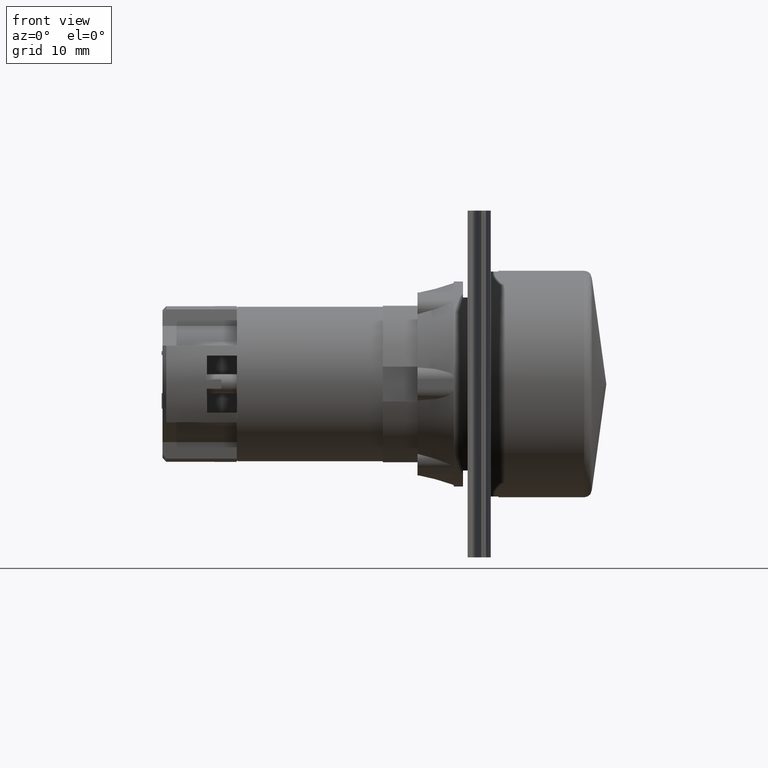
[diagram: clean part render]
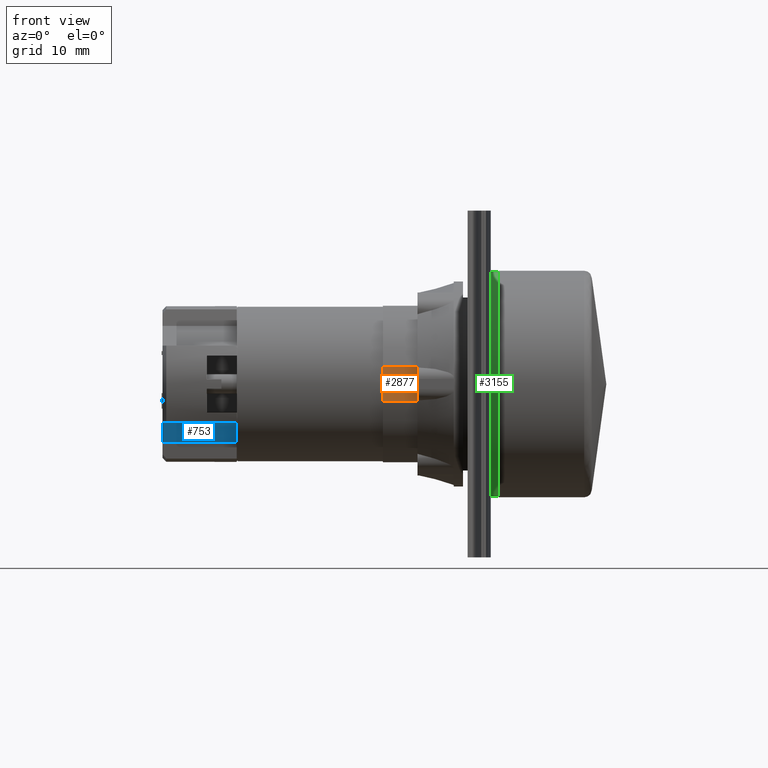
[diagram: same view with three faces highlighted in distinct colors, each labeled with its STEP entity id]
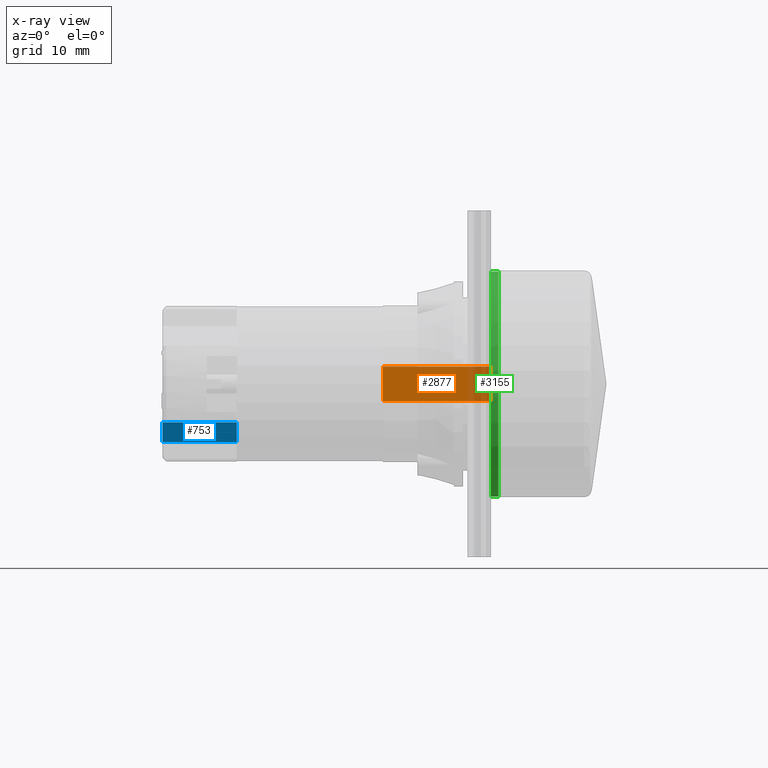
[diagram: x-ray of the same camera — body ghosted, the three highlighted faces saturated]
A machine part, front view with three faces highlighted in distinct colors.
The next image is the same camera in x-ray (body ghosted, the three faces saturated) — at least one of them is partly hidden behind the body in this view.
Their STEP definitions:

[orange] entity #2877 — the highlighted planar face has unit normal (0, 1, 0).
#2721=CARTESIAN_POINT('',(-0.522597079042573,-9.725286447873549,2.250000000000003));
#2722=VERTEX_POINT('',#2721);
#2729=CARTESIAN_POINT('',(-0.522597079042573,-9.725286447873549,-2.249999999999997));
#2730=VERTEX_POINT('',#2729);
#2731=CARTESIAN_POINT('',(-0.522597079042573,-9.725286447873549,2.250000000000003));
#2732=DIRECTION('',(0.0,0.0,-1.0));
#2733=VECTOR('',#2732,4.500000000000000);
#2734=LINE('',#2731,#2733);
#2735=EDGE_CURVE('',#2722,#2730,#2734,.T.);
#2829=CARTESIAN_POINT('',(-14.522597079042569,-9.725286447873549,2.250000000000003));
#2830=VERTEX_POINT('',#2829);
#2837=CARTESIAN_POINT('',(-14.522597079042569,-9.725286447873549,2.250000000000003));
#2838=DIRECTION('',(1.0,0.0,0.0));
#2839=VECTOR('',#2838,13.999999999999996);
#2840=LINE('',#2837,#2839);
#2841=EDGE_CURVE('',#2830,#2722,#2840,.T.);
#2846=CARTESIAN_POINT('',(-14.522597079042569,-9.725286447873549,2.250000000000003));
#2847=DIRECTION('',(0.0,1.0,0.0));
#2848=DIRECTION('',(0.0,0.0,1.0));
#2849=AXIS2_PLACEMENT_3D('',#2846,#2847,#2848);
#2850=PLANE('',#2849);
#2851=ORIENTED_EDGE('',*,*,#2735,.F.);
#2852=ORIENTED_EDGE('',*,*,#2841,.F.);
#2853=CARTESIAN_POINT('',(-14.522597079042569,-9.725286447873549,0.0));
#2854=VERTEX_POINT('',#2853);
#2855=CARTESIAN_POINT('',(-14.522597079042569,-9.725286447873549,0.0));
#2856=DIRECTION('',(0.0,0.0,1.0));
#2857=VECTOR('',#2856,2.250000000000003);
#2858=LINE('',#2855,#2857);
#2859=EDGE_CURVE('',#2854,#2830,#2858,.T.);
#2860=ORIENTED_EDGE('',*,*,#2859,.F.);
#2861=CARTESIAN_POINT('',(-14.522597079042569,-9.725286447873549,-2.249999999999997));
#2862=VERTEX_POINT('',#2861);
#2863=CARTESIAN_POINT('',(-14.522597079042569,-9.725286447873549,-2.249999999999997));
#2864=DIRECTION('',(0.0,0.0,1.0));
#2865=VECTOR('',#2864,2.249999999999997);
#2866=LINE('',#2863,#2865);
#2867=EDGE_CURVE('',#2862,#2854,#2866,.T.);
#2868=ORIENTED_EDGE('',*,*,#2867,.F.);
#2869=CARTESIAN_POINT('',(-14.522597079042569,-9.725286447873549,-2.249999999999997));
#2870=DIRECTION('',(1.0,0.0,0.0));
#2871=VECTOR('',#2870,13.999999999999996);
#2872=LINE('',#2869,#2871);
#2873=EDGE_CURVE('',#2862,#2730,#2872,.T.);
#2874=ORIENTED_EDGE('',*,*,#2873,.T.);
#2875=EDGE_LOOP('',(#2851,#2852,#2860,#2868,#2874));
#2876=FACE_OUTER_BOUND('',#2875,.T.);
#2877=ADVANCED_FACE('',(#2876),#2850,.F.);

[blue] entity #753 — the highlighted planar face has unit normal (0, 0.6046, 0.7965).
#657=CARTESIAN_POINT('',(-43.122597079042571,-6.240128254737982,-4.980386830936121));
#658=VERTEX_POINT('',#657);
#665=CARTESIAN_POINT('',(-33.472597079042586,-6.240128254737982,-4.980386830936121));
#666=VERTEX_POINT('',#665);
#667=CARTESIAN_POINT('',(-43.122597079042571,-6.240128254737982,-4.980386830936121));
#668=DIRECTION('',(1.0,0.0,0.0));
#669=VECTOR('',#668,9.649999999999984);
#670=LINE('',#667,#669);
#671=EDGE_CURVE('',#658,#666,#670,.T.);
#713=CARTESIAN_POINT('',(-33.472597079042586,-2.872708961017791,-7.536476785324715));
#714=VERTEX_POINT('',#713);
#715=CARTESIAN_POINT('',(-33.472597079042586,-6.240128254737982,-4.980386830936121));
#716=DIRECTION('',(0.0,0.796520851439320,-0.604611059460857));
#717=VECTOR('',#716,4.227659938387344);
#718=LINE('',#715,#717);
#719=EDGE_CURVE('',#666,#714,#718,.T.);
#730=CARTESIAN_POINT('',(-43.122597079042571,-6.240128254737982,-4.980386830936121));
#731=DIRECTION('',(0.0,0.604611059460857,0.796520851439320));
#732=DIRECTION('',(1.0,0.0,0.0));
#733=AXIS2_PLACEMENT_3D('',#730,#731,#732);
#734=PLANE('',#733);
#735=ORIENTED_EDGE('',*,*,#719,.F.);
#736=ORIENTED_EDGE('',*,*,#671,.F.);
#737=CARTESIAN_POINT('',(-43.122597079042571,-2.872708961017791,-7.536476785324715));
#738=VERTEX_POINT('',#737);
#739=CARTESIAN_POINT('',(-43.122597079042571,-2.872708961017791,-7.536476785324715));
#740=DIRECTION('',(0.0,-0.796520851439320,0.604611059460857));
#741=VECTOR('',#740,4.227659938387344);
#742=LINE('',#739,#741);
#743=EDGE_CURVE('',#738,#658,#742,.T.);
#744=ORIENTED_EDGE('',*,*,#743,.F.);
#745=CARTESIAN_POINT('',(-43.122597079042571,-2.872708961017791,-7.536476785324715));
#746=DIRECTION('',(1.0,0.0,0.0));
#747=VECTOR('',#746,9.649999999999984);
#748=LINE('',#745,#747);
#749=EDGE_CURVE('',#738,#714,#748,.T.);
#750=ORIENTED_EDGE('',*,*,#749,.T.);
#751=EDGE_LOOP('',(#735,#736,#744,#750));
#752=FACE_OUTER_BOUND('',#751,.T.);
#753=ADVANCED_FACE('',(#752),#734,.F.);

[green] entity #3155 — the highlighted cylindrical surface (bore or boss wall) has radius 14.625 mm, axis along (1, 0, 0).
#2709=CARTESIAN_POINT('',(-0.522597079042570,8.842036944435796,11.924556996804954));
#2710=VERTEX_POINT('',#2709);
#2711=CARTESIAN_POINT('',(-0.522597079042570,0.374713552126451,0.0));
#2712=DIRECTION('',(1.0,-1.302521E-013,0.0));
#2713=DIRECTION('',(1.302521E-013,1.0,0.0));
#2714=AXIS2_PLACEMENT_3D('',#2711,#2712,#2713);
#2715=CIRCLE('',#2714,14.624999999999966);
#2716=EDGE_CURVE('',#2710,#2710,#2715,.T.);
#3136=CARTESIAN_POINT('',(-0.022597079042570,0.374713552126451,0.0));
#3137=DIRECTION('',(1.0,0.0,0.0));
#3138=DIRECTION('',(1.302521E-013,1.0,0.0));
#3139=AXIS2_PLACEMENT_3D('',#3136,#3137,#3138);
#3140=CYLINDRICAL_SURFACE('',#3139,14.624999999999964);
#3141=CARTESIAN_POINT('',(0.477402920957430,14.999713552126416,0.0));
#3142=VERTEX_POINT('',#3141);
#3143=CARTESIAN_POINT('',(0.477402920957430,0.374713552126451,0.0));
#3144=DIRECTION('',(1.0,-1.302521E-013,0.0));
#3145=DIRECTION('',(1.302521E-013,1.0,0.0));
#3146=AXIS2_PLACEMENT_3D('',#3143,#3144,#3145);
#3147=CIRCLE('',#3146,14.624999999999964);
#3148=EDGE_CURVE('',#3142,#3142,#3147,.T.);
#3149=ORIENTED_EDGE('',*,*,#3148,.F.);
#3150=EDGE_LOOP('',(#3149));
#3151=FACE_OUTER_BOUND('',#3150,.T.);
#3152=ORIENTED_EDGE('',*,*,#2716,.T.);
#3153=EDGE_LOOP('',(#3152));
#3154=FACE_BOUND('',#3153,.T.);
#3155=ADVANCED_FACE('',(#3151,#3154),#3140,.T.);